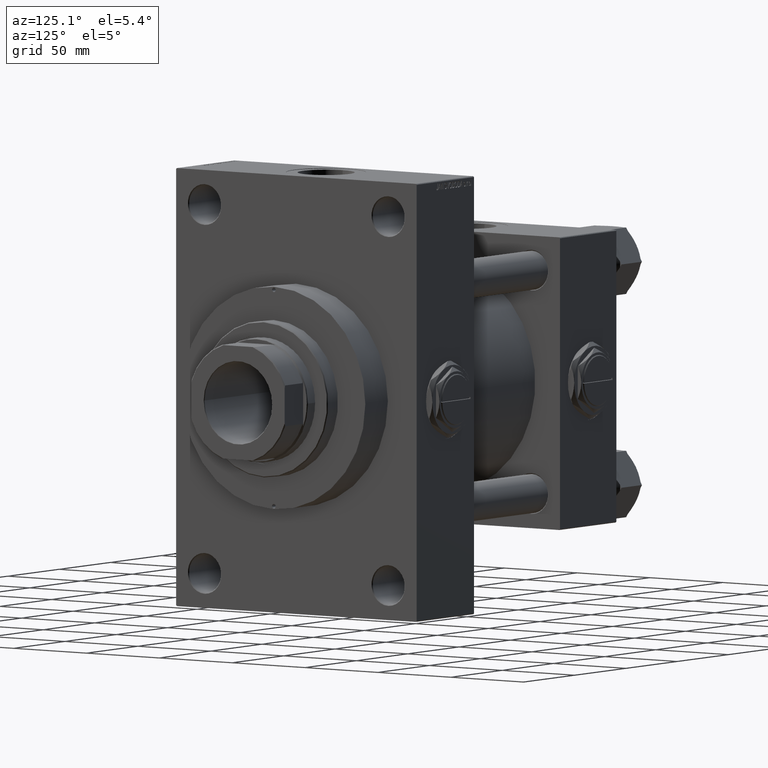
[diagram: clean part render]
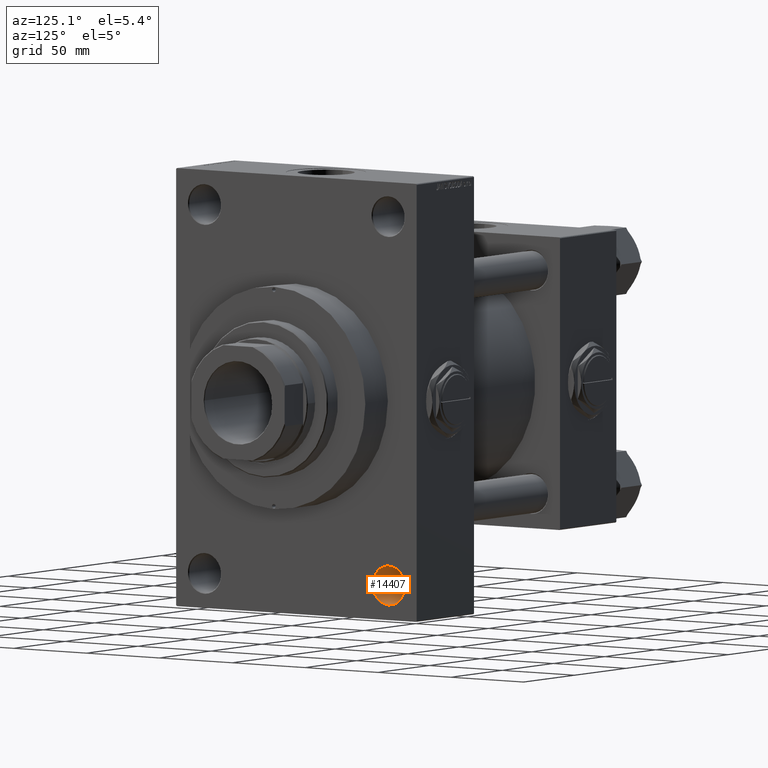
[diagram: same view with one face highlighted and labeled with its STEP entity id]
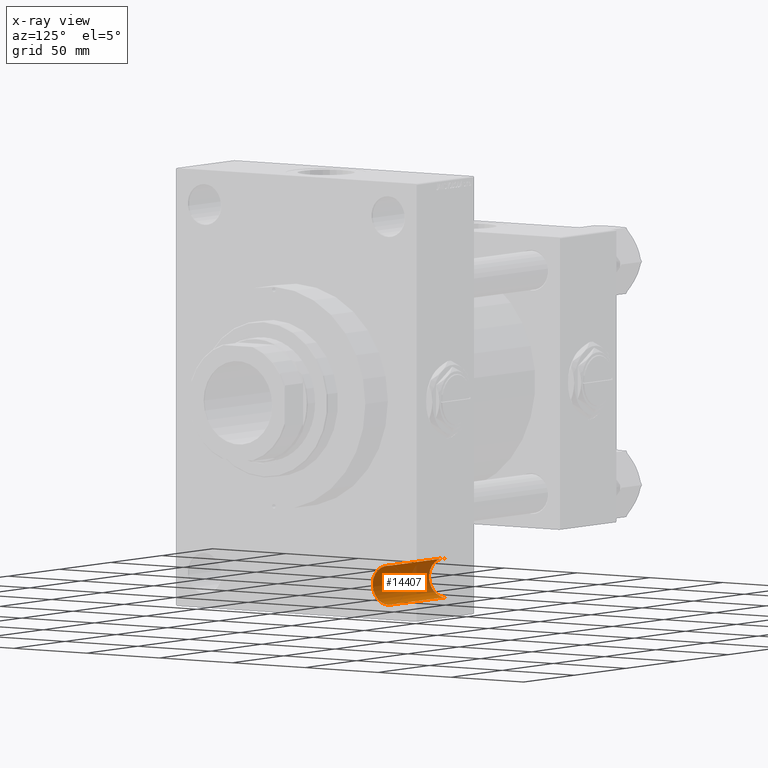
[diagram: x-ray of the same camera — body ghosted, the highlighted face saturated]
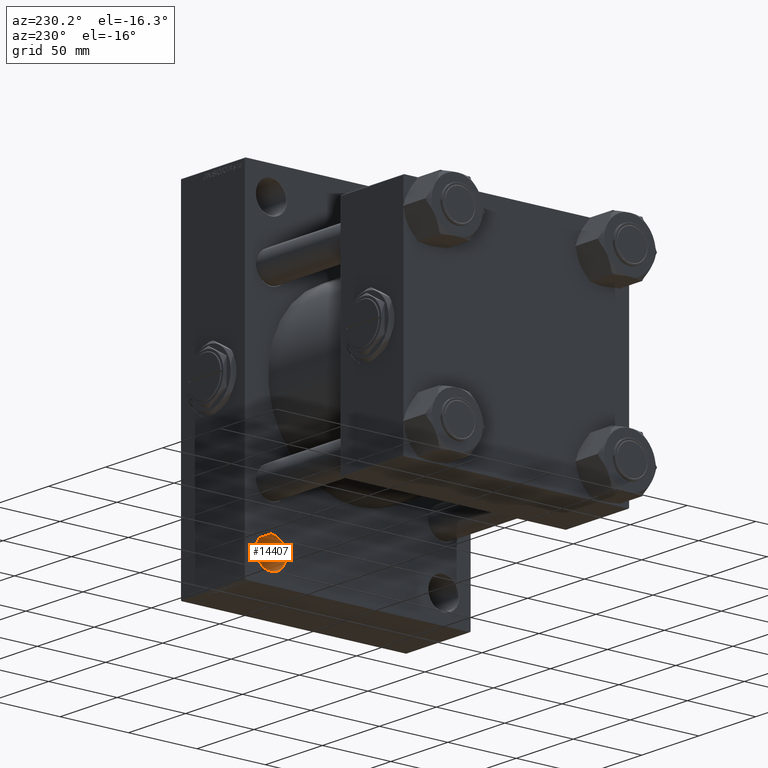
[diagram: same view with one face highlighted and labeled with its STEP entity id]
A machine part, auxiliary view. The second image highlights one B-rep face of the part: STEP entity #14407.
The next image is the same camera in x-ray: the body ghosted, the highlighted face saturated — about 24% of this face is hidden behind the body in this view.
A second angle (auxiliary view) of the same face is appended — the face is thin or edge-on in the first view.
In plain terms, the highlighted cylindrical surface (edge-blend (fillet) strip) has radius 11 mm, axis along (1, 0, 0).
Its self-contained STEP definition (entity closure, byte-faithful):
#49 = AXIS2_PLACEMENT_3D ( 'NONE', #14556, #17584, #10755 ) ;
#842 = CARTESIAN_POINT ( 'NONE',  ( 107.8873016277919135, 63.00000000000000000, -115.0000000000000000 ) ) ;
#1264 = EDGE_CURVE ( 'NONE', #16249, #13856, #15786, .T. ) ;
#1402 = ORIENTED_EDGE ( 'NONE', *, *, #1264, .F. ) ;
#2946 = ORIENTED_EDGE ( 'NONE', *, *, #37336, .T. ) ;
#4177 = AXIS2_PLACEMENT_3D ( 'NONE', #43643, #16380, #47440 ) ;
#5008 = VERTEX_POINT ( 'NONE', #27755 ) ;
#8197 = CIRCLE ( 'NONE', #4177, 10.99999999999999645 ) ;
#8962 = DIRECTION ( 'NONE',  ( 1.000000000000000000, -0.000000000000000000, -0.000000000000000000 ) ) ;
#10755 = DIRECTION ( 'NONE',  ( 0.000000000000000000, 0.000000000000000000, -1.000000000000000000 ) ) ;
#13856 = VERTEX_POINT ( 'NONE', #32175 ) ;
#14295 = CYLINDRICAL_SURFACE ( 'NONE', #49, 10.99999999999999645 ) ;
#14407 = ADVANCED_FACE ( 'NONE', ( #25169 ), #14295, .F. ) ;
#14556 = CARTESIAN_POINT ( 'NONE',  ( 107.8873016277919135, 63.00000000000000000, -104.0000000000000142 ) ) ;
#15182 = EDGE_LOOP ( 'NONE', ( #2946, #33896, #34667, #1402 ) ) ;
#15786 = LINE ( 'NONE', #842, #19767 ) ;
#16249 = VERTEX_POINT ( 'NONE', #32285 ) ;
#16291 = DIRECTION ( 'NONE',  ( 1.000000000000000000, -0.000000000000000000, -0.000000000000000000 ) ) ;
#16380 = DIRECTION ( 'NONE',  ( 1.000000000000000000, 0.000000000000000000, 0.000000000000000000 ) ) ;
#17033 = EDGE_CURVE ( 'NONE', #5008, #13856, #8197, .T. ) ;
#17550 = LINE ( 'NONE', #40279, #41047 ) ;
#17584 = DIRECTION ( 'NONE',  ( 1.000000000000000000, -0.000000000000000000, -0.000000000000000000 ) ) ;
#19767 = VECTOR ( 'NONE', #16291, 1000.000000000000000 ) ;
#22551 = AXIS2_PLACEMENT_3D ( 'NONE', #32549, #47941, #44161 ) ;
#25169 = FACE_OUTER_BOUND ( 'NONE', #15182, .T. ) ;
#27043 = CARTESIAN_POINT ( 'NONE',  ( 139.5000000000000000, 63.00000000000000000, -93.00000000000001421 ) ) ;
#27755 = CARTESIAN_POINT ( 'NONE',  ( 194.5000000000001421, 63.00000000000000000, -93.00000000000001421 ) ) ;
#32175 = CARTESIAN_POINT ( 'NONE',  ( 194.5000000000001421, 63.00000000000000000, -115.0000000000000000 ) ) ;
#32285 = CARTESIAN_POINT ( 'NONE',  ( 139.5000000000000000, 63.00000000000000000, -115.0000000000000000 ) ) ;
#32549 = CARTESIAN_POINT ( 'NONE',  ( 139.5000000000000000, 63.00000000000000000, -104.0000000000000142 ) ) ;
#33896 = ORIENTED_EDGE ( 'NONE', *, *, #48437, .T. ) ;
#34667 = ORIENTED_EDGE ( 'NONE', *, *, #17033, .T. ) ;
#37336 = EDGE_CURVE ( 'NONE', #16249, #48881, #45947, .T. ) ;
#40279 = CARTESIAN_POINT ( 'NONE',  ( 107.8873016277919135, 63.00000000000000000, -93.00000000000001421 ) ) ;
#41047 = VECTOR ( 'NONE', #8962, 1000.000000000000000 ) ;
#43643 = CARTESIAN_POINT ( 'NONE',  ( 194.5000000000001421, 63.00000000000000000, -104.0000000000000142 ) ) ;
#44161 = DIRECTION ( 'NONE',  ( 0.000000000000000000, 0.000000000000000000, 1.000000000000000000 ) ) ;
#45947 = CIRCLE ( 'NONE', #22551, 10.99999999999999645 ) ;
#47440 = DIRECTION ( 'NONE',  ( 0.000000000000000000, 0.000000000000000000, 1.000000000000000000 ) ) ;
#47941 = DIRECTION ( 'NONE',  ( -1.000000000000000000, -0.000000000000000000, -0.000000000000000000 ) ) ;
#48437 = EDGE_CURVE ( 'NONE', #48881, #5008, #17550, .T. ) ;
#48881 = VERTEX_POINT ( 'NONE', #27043 ) ;